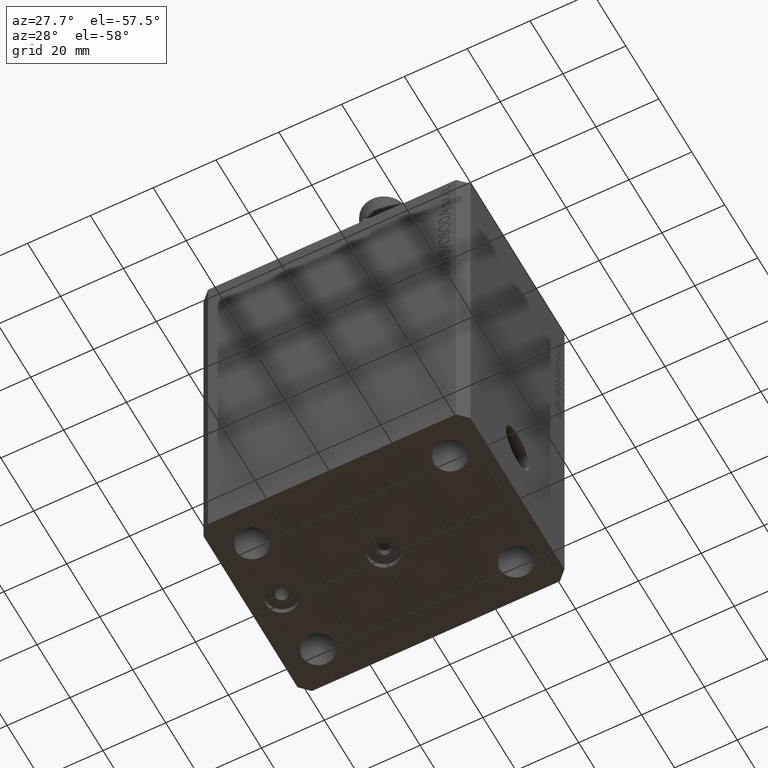
[diagram: clean part render]
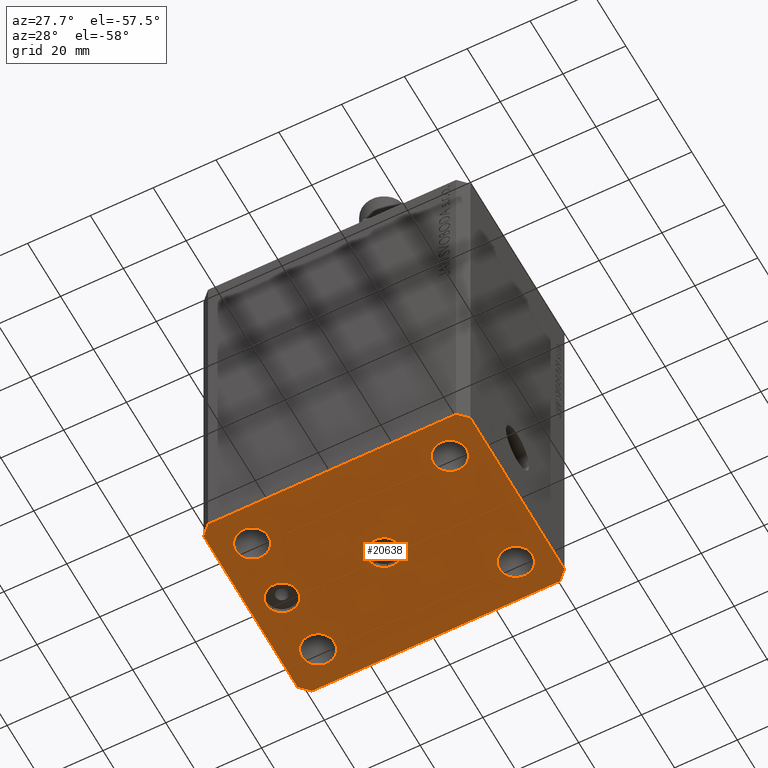
[diagram: same view with one face highlighted and labeled with its STEP entity id]
A machine part, auxiliary view. The second image highlights one B-rep face of the part: STEP entity #20638.
In plain terms, the highlighted planar face has unit normal (0, 0, 1).
Its self-contained STEP definition (entity closure, byte-faithful):
#334 = DIRECTION ( 'NONE',  ( -0.000000000000000000, -0.000000000000000000, -1.000000000000000000 ) ) ;
#699 = EDGE_CURVE ( 'NONE', #10042, #41396, #45478, .T. ) ;
#807 = DIRECTION ( 'NONE',  ( 1.000000000000000000, 0.000000000000000000, 0.000000000000000000 ) ) ;
#982 = DIRECTION ( 'NONE',  ( -0.000000000000000000, -0.000000000000000000, -1.000000000000000000 ) ) ;
#1117 = CARTESIAN_POINT ( 'NONE',  ( -39.50000000000000711, 31.50000000000000000, -123.0000000000000000 ) ) ;
#1285 = EDGE_CURVE ( 'NONE', #29782, #12764, #42392, .T. ) ;
#1925 = CIRCLE ( 'NONE', #25006, 5.000000000000000000 ) ;
#2215 = CIRCLE ( 'NONE', #32789, 5.249999999999997335 ) ;
#2692 = CARTESIAN_POINT ( 'NONE',  ( 39.50000000000056843, 31.50000000000000000, -123.0000000000000000 ) ) ;
#2749 = VECTOR ( 'NONE', #39148, 1000.000000000000000 ) ;
#3031 = DIRECTION ( 'NONE',  ( -0.000000000000000000, -0.000000000000000000, -1.000000000000000000 ) ) ;
#3111 = DIRECTION ( 'NONE',  ( 0.000000000000000000, 0.000000000000000000, 1.000000000000000000 ) ) ;
#3492 = CARTESIAN_POINT ( 'NONE',  ( -31.49999999999999289, -20.00000000000000355, -123.0000000000000000 ) ) ;
#3531 = EDGE_LOOP ( 'NONE', ( #10134, #8342 ) ) ;
#3800 = CARTESIAN_POINT ( 'NONE',  ( 31.50000000000000000, 19.99999999999999289, -123.0000000000000000 ) ) ;
#3901 = LINE ( 'NONE', #18140, #2749 ) ;
#3964 = EDGE_CURVE ( 'NONE', #5581, #39825, #2215, .T. ) ;
#4260 = EDGE_CURVE ( 'NONE', #43373, #16663, #4452, .T. ) ;
#4452 = CIRCLE ( 'NONE', #11158, 5.250000000000000888 ) ;
#4550 = ORIENTED_EDGE ( 'NONE', *, *, #28269, .F. ) ;
#5581 = VERTEX_POINT ( 'NONE', #42670 ) ;
#6200 = ORIENTED_EDGE ( 'NONE', *, *, #1285, .F. ) ;
#6250 = DIRECTION ( 'NONE',  ( -0.7071067811865471286, -0.7071067811865479058, 0.000000000000000000 ) ) ;
#6423 = AXIS2_PLACEMENT_3D ( 'NONE', #3492, #20986, #17725 ) ;
#6446 = CARTESIAN_POINT ( 'NONE',  ( 42.50000000000000711, -28.50000000000000355, -123.0000000000000000 ) ) ;
#6869 = LINE ( 'NONE', #20890, #30222 ) ;
#6925 = CARTESIAN_POINT ( 'NONE',  ( -42.50000000000000000, 28.50000000000000000, -123.0000000000000000 ) ) ;
#7063 = FACE_BOUND ( 'NONE', #9849, .T. ) ;
#7121 = ORIENTED_EDGE ( 'NONE', *, *, #36070, .F. ) ;
#7753 = FACE_BOUND ( 'NONE', #28300, .T. ) ;
#7852 = VERTEX_POINT ( 'NONE', #24816 ) ;
#7897 = VECTOR ( 'NONE', #34824, 1000.000000000000000 ) ;
#8261 = DIRECTION ( 'NONE',  ( -1.000000000000000000, 0.000000000000000000, 0.000000000000000000 ) ) ;
#8342 = ORIENTED_EDGE ( 'NONE', *, *, #4260, .F. ) ;
#8572 = AXIS2_PLACEMENT_3D ( 'NONE', #15287, #334, #807 ) ;
#8713 = AXIS2_PLACEMENT_3D ( 'NONE', #43016, #3111, #39043 ) ;
#9285 = CARTESIAN_POINT ( 'NONE',  ( -27.50000000000000355, 6.123233995736762338E-16, -123.0000000000000000 ) ) ;
#9434 = AXIS2_PLACEMENT_3D ( 'NONE', #32972, #982, #15234 ) ;
#9746 = LINE ( 'NONE', #38216, #13169 ) ;
#9849 = EDGE_LOOP ( 'NONE', ( #42130, #41415 ) ) ;
#9875 = CARTESIAN_POINT ( 'NONE',  ( 36.74999999999999289, -20.00000000000000355, -123.0000000000000000 ) ) ;
#10042 = VERTEX_POINT ( 'NONE', #1117 ) ;
#10083 = EDGE_CURVE ( 'NONE', #23493, #15028, #24187, .T. ) ;
#10134 = ORIENTED_EDGE ( 'NONE', *, *, #43926, .F. ) ;
#10571 = PLANE ( 'NONE',  #8713 ) ;
#10909 = AXIS2_PLACEMENT_3D ( 'NONE', #42451, #3031, #39197 ) ;
#11158 = AXIS2_PLACEMENT_3D ( 'NONE', #37392, #41109, #12872 ) ;
#11264 = DIRECTION ( 'NONE',  ( 1.000000000000000000, 0.000000000000000000, 0.000000000000000000 ) ) ;
#11274 = ORIENTED_EDGE ( 'NONE', *, *, #699, .F. ) ;
#11705 = CIRCLE ( 'NONE', #43769, 5.249999999999997335 ) ;
#12059 = DIRECTION ( 'NONE',  ( -1.000000000000000000, 0.000000000000000000, 0.000000000000000000 ) ) ;
#12420 = ORIENTED_EDGE ( 'NONE', *, *, #38715, .F. ) ;
#12458 = EDGE_CURVE ( 'NONE', #28687, #17854, #42730, .T. ) ;
#12674 = DIRECTION ( 'NONE',  ( 0.7071067811865483499, 0.7071067811865466846, 0.000000000000000000 ) ) ;
#12749 = ORIENTED_EDGE ( 'NONE', *, *, #10083, .F. ) ;
#12764 = VERTEX_POINT ( 'NONE', #25254 ) ;
#12872 = DIRECTION ( 'NONE',  ( 1.000000000000000000, 0.000000000000000000, 0.000000000000000000 ) ) ;
#13169 = VECTOR ( 'NONE', #16299, 1000.000000000000000 ) ;
#13409 = VERTEX_POINT ( 'NONE', #22326 ) ;
#14029 = CARTESIAN_POINT ( 'NONE',  ( -42.50000000000000000, 28.50000000000000000, -123.0000000000000000 ) ) ;
#14097 = ORIENTED_EDGE ( 'NONE', *, *, #39588, .F. ) ;
#14122 = DIRECTION ( 'NONE',  ( -0.7071067811865356934, 0.7071067811865594521, 0.000000000000000000 ) ) ;
#14714 = VECTOR ( 'NONE', #6250, 1000.000000000000000 ) ;
#15028 = VERTEX_POINT ( 'NONE', #36050 ) ;
#15234 = DIRECTION ( 'NONE',  ( 1.000000000000000000, 0.000000000000000000, 0.000000000000000000 ) ) ;
#15287 = CARTESIAN_POINT ( 'NONE',  ( 31.49999999999999289, -20.00000000000000355, -123.0000000000000000 ) ) ;
#15501 = VERTEX_POINT ( 'NONE', #43231 ) ;
#16020 = CARTESIAN_POINT ( 'NONE',  ( 39.50000000000056843, 31.50000000000000000, -123.0000000000000000 ) ) ;
#16254 = LINE ( 'NONE', #16020, #40580 ) ;
#16299 = DIRECTION ( 'NONE',  ( 1.000000000000000000, 0.000000000000000000, 0.000000000000000000 ) ) ;
#16663 = VERTEX_POINT ( 'NONE', #32461 ) ;
#16802 = CIRCLE ( 'NONE', #42875, 5.000000000000000000 ) ;
#16901 = EDGE_CURVE ( 'NONE', #15028, #29118, #6869, .T. ) ;
#17098 = AXIS2_PLACEMENT_3D ( 'NONE', #3800, #21768, #11264 ) ;
#17585 = FACE_BOUND ( 'NONE', #23484, .T. ) ;
#17725 = DIRECTION ( 'NONE',  ( 1.000000000000000000, 0.000000000000000000, 0.000000000000000000 ) ) ;
#17854 = VERTEX_POINT ( 'NONE', #34869 ) ;
#18134 = DIRECTION ( 'NONE',  ( -1.000000000000000000, 0.000000000000000000, 0.000000000000000000 ) ) ;
#18140 = CARTESIAN_POINT ( 'NONE',  ( -42.50000000000000000, -28.50000000000000000, -123.0000000000000000 ) ) ;
#18732 = EDGE_CURVE ( 'NONE', #41396, #19311, #24749, .T. ) ;
#18797 = CARTESIAN_POINT ( 'NONE',  ( 31.49999999999999289, -20.00000000000000355, -123.0000000000000000 ) ) ;
#18871 = ORIENTED_EDGE ( 'NONE', *, *, #26526, .F. ) ;
#19301 = EDGE_LOOP ( 'NONE', ( #27896, #38241 ) ) ;
#19311 = VERTEX_POINT ( 'NONE', #28652 ) ;
#19450 = CARTESIAN_POINT ( 'NONE',  ( 39.50000000000000711, -31.50000000000000000, -123.0000000000000000 ) ) ;
#19610 = EDGE_CURVE ( 'NONE', #7852, #23168, #31041, .T. ) ;
#20367 = EDGE_LOOP ( 'NONE', ( #38801, #23143, #12749, #12420, #34138, #7121, #35695, #11274 ) ) ;
#20500 = CARTESIAN_POINT ( 'NONE',  ( -39.50000000000000711, 31.50000000000000000, -123.0000000000000000 ) ) ;
#20638 = ADVANCED_FACE ( 'NONE', ( #32061, #39737, #35319, #17585, #7753, #7063, #35099 ), #10571, .F. ) ;
#20699 = DIRECTION ( 'NONE',  ( 8.886653596232072440E-15, 1.000000000000000000, 0.000000000000000000 ) ) ;
#20705 = AXIS2_PLACEMENT_3D ( 'NONE', #40685, #23399, #44428 ) ;
#20711 = CARTESIAN_POINT ( 'NONE',  ( -36.74999999999999289, -20.00000000000000355, -123.0000000000000000 ) ) ;
#20890 = CARTESIAN_POINT ( 'NONE',  ( 42.50000000000051870, 28.49999999999995381, -123.0000000000000000 ) ) ;
#20986 = DIRECTION ( 'NONE',  ( -0.000000000000000000, -0.000000000000000000, -1.000000000000000000 ) ) ;
#21618 = EDGE_CURVE ( 'NONE', #15501, #13409, #1925, .T. ) ;
#21768 = DIRECTION ( 'NONE',  ( -0.000000000000000000, -0.000000000000000000, -1.000000000000000000 ) ) ;
#22326 = CARTESIAN_POINT ( 'NONE',  ( 5.000000000000000000, 6.123233995736765296E-16, -123.0000000000000000 ) ) ;
#23143 = ORIENTED_EDGE ( 'NONE', *, *, #16901, .F. ) ;
#23168 = VERTEX_POINT ( 'NONE', #43321 ) ;
#23399 = DIRECTION ( 'NONE',  ( 0.000000000000000000, 0.000000000000000000, -1.000000000000000000 ) ) ;
#23484 = EDGE_LOOP ( 'NONE', ( #14097, #46159 ) ) ;
#23493 = VERTEX_POINT ( 'NONE', #43432 ) ;
#23621 = DIRECTION ( 'NONE',  ( 1.000000000000000000, 0.000000000000000000, 0.000000000000000000 ) ) ;
#24187 = LINE ( 'NONE', #6446, #33654 ) ;
#24749 = LINE ( 'NONE', #14029, #7897 ) ;
#24816 = CARTESIAN_POINT ( 'NONE',  ( -26.25000000000000000, 19.99999999999999645, -123.0000000000000000 ) ) ;
#25006 = AXIS2_PLACEMENT_3D ( 'NONE', #42695, #35712, #36170 ) ;
#25058 = CIRCLE ( 'NONE', #10909, 5.250000000000000888 ) ;
#25254 = CARTESIAN_POINT ( 'NONE',  ( 26.25000000000000355, 19.99999999999999289, -123.0000000000000000 ) ) ;
#25288 = CARTESIAN_POINT ( 'NONE',  ( 39.50000000000000711, -31.50000000000000000, -123.0000000000000000 ) ) ;
#25776 = DIRECTION ( 'NONE',  ( 0.000000000000000000, 0.000000000000000000, -1.000000000000000000 ) ) ;
#26526 = EDGE_CURVE ( 'NONE', #12764, #29782, #11705, .T. ) ;
#26564 = CARTESIAN_POINT ( 'NONE',  ( 36.75000000000000000, 19.99999999999999289, -123.0000000000000000 ) ) ;
#27896 = ORIENTED_EDGE ( 'NONE', *, *, #21618, .F. ) ;
#28269 = EDGE_CURVE ( 'NONE', #17854, #28687, #44563, .T. ) ;
#28300 = EDGE_LOOP ( 'NONE', ( #6200, #18871 ) ) ;
#28652 = CARTESIAN_POINT ( 'NONE',  ( -42.50000000000000000, -28.50000000000000000, -123.0000000000000000 ) ) ;
#28687 = VERTEX_POINT ( 'NONE', #9285 ) ;
#28934 = CARTESIAN_POINT ( 'NONE',  ( -39.50000000000000711, -31.50000000000000000, -123.0000000000000000 ) ) ;
#29118 = VERTEX_POINT ( 'NONE', #2692 ) ;
#29782 = VERTEX_POINT ( 'NONE', #26564 ) ;
#30222 = VECTOR ( 'NONE', #14122, 1000.000000000000114 ) ;
#30293 = CIRCLE ( 'NONE', #6423, 5.250000000000000888 ) ;
#30384 = EDGE_LOOP ( 'NONE', ( #4550, #43972 ) ) ;
#31041 = CIRCLE ( 'NONE', #9434, 5.250000000000000888 ) ;
#32061 = FACE_BOUND ( 'NONE', #19301, .T. ) ;
#32340 = VERTEX_POINT ( 'NONE', #25288 ) ;
#32461 = CARTESIAN_POINT ( 'NONE',  ( -26.24999999999999289, -20.00000000000000355, -123.0000000000000000 ) ) ;
#32566 = CARTESIAN_POINT ( 'NONE',  ( -32.50000000000000000, 0.000000000000000000, -123.0000000000000000 ) ) ;
#32789 = AXIS2_PLACEMENT_3D ( 'NONE', #18797, #33040, #36757 ) ;
#32972 = CARTESIAN_POINT ( 'NONE',  ( -31.50000000000000000, 19.99999999999999645, -123.0000000000000000 ) ) ;
#33040 = DIRECTION ( 'NONE',  ( -0.000000000000000000, -0.000000000000000000, -1.000000000000000000 ) ) ;
#33654 = VECTOR ( 'NONE', #20699, 1000.000000000000000 ) ;
#34127 = DIRECTION ( 'NONE',  ( -0.000000000000000000, -0.000000000000000000, -1.000000000000000000 ) ) ;
#34138 = ORIENTED_EDGE ( 'NONE', *, *, #44101, .F. ) ;
#34824 = DIRECTION ( 'NONE',  ( 0.000000000000000000, -1.000000000000000000, 0.000000000000000000 ) ) ;
#34869 = CARTESIAN_POINT ( 'NONE',  ( -37.50000000000000000, 0.000000000000000000, -123.0000000000000000 ) ) ;
#35060 = EDGE_CURVE ( 'NONE', #23168, #7852, #25058, .T. ) ;
#35099 = FACE_OUTER_BOUND ( 'NONE', #20367, .T. ) ;
#35190 = DIRECTION ( 'NONE',  ( 0.000000000000000000, 0.000000000000000000, -1.000000000000000000 ) ) ;
#35319 = FACE_BOUND ( 'NONE', #3531, .T. ) ;
#35695 = ORIENTED_EDGE ( 'NONE', *, *, #18732, .F. ) ;
#35712 = DIRECTION ( 'NONE',  ( 0.000000000000000000, 0.000000000000000000, -1.000000000000000000 ) ) ;
#35879 = CARTESIAN_POINT ( 'NONE',  ( 0.000000000000000000, 0.000000000000000000, -123.0000000000000000 ) ) ;
#36050 = CARTESIAN_POINT ( 'NONE',  ( 42.50000000000051870, 28.49999999999995381, -123.0000000000000000 ) ) ;
#36070 = EDGE_CURVE ( 'NONE', #19311, #38191, #3901, .T. ) ;
#36170 = DIRECTION ( 'NONE',  ( -1.000000000000000000, 0.000000000000000000, 0.000000000000000000 ) ) ;
#36757 = DIRECTION ( 'NONE',  ( 1.000000000000000000, 0.000000000000000000, 0.000000000000000000 ) ) ;
#37392 = CARTESIAN_POINT ( 'NONE',  ( -31.49999999999999289, -20.00000000000000355, -123.0000000000000000 ) ) ;
#38081 = CARTESIAN_POINT ( 'NONE',  ( 31.50000000000000000, 19.99999999999999289, -123.0000000000000000 ) ) ;
#38191 = VERTEX_POINT ( 'NONE', #28934 ) ;
#38216 = CARTESIAN_POINT ( 'NONE',  ( -39.50000000000000711, -31.50000000000000000, -123.0000000000000000 ) ) ;
#38241 = ORIENTED_EDGE ( 'NONE', *, *, #41367, .F. ) ;
#38715 = EDGE_CURVE ( 'NONE', #32340, #23493, #40691, .T. ) ;
#38801 = ORIENTED_EDGE ( 'NONE', *, *, #39267, .F. ) ;
#39043 = DIRECTION ( 'NONE',  ( 1.000000000000000000, 0.000000000000000000, -0.000000000000000000 ) ) ;
#39148 = DIRECTION ( 'NONE',  ( 0.7071067811865471286, -0.7071067811865479058, 0.000000000000000000 ) ) ;
#39197 = DIRECTION ( 'NONE',  ( 1.000000000000000000, 0.000000000000000000, 0.000000000000000000 ) ) ;
#39267 = EDGE_CURVE ( 'NONE', #29118, #10042, #16254, .T. ) ;
#39588 = EDGE_CURVE ( 'NONE', #39825, #5581, #42094, .T. ) ;
#39737 = FACE_BOUND ( 'NONE', #30384, .T. ) ;
#39825 = VERTEX_POINT ( 'NONE', #9875 ) ;
#40580 = VECTOR ( 'NONE', #12059, 1000.000000000000000 ) ;
#40685 = CARTESIAN_POINT ( 'NONE',  ( -32.50000000000000000, 0.000000000000000000, -123.0000000000000000 ) ) ;
#40691 = LINE ( 'NONE', #19450, #42798 ) ;
#41109 = DIRECTION ( 'NONE',  ( -0.000000000000000000, -0.000000000000000000, -1.000000000000000000 ) ) ;
#41235 = AXIS2_PLACEMENT_3D ( 'NONE', #32566, #25776, #8261 ) ;
#41367 = EDGE_CURVE ( 'NONE', #13409, #15501, #16802, .T. ) ;
#41396 = VERTEX_POINT ( 'NONE', #6925 ) ;
#41415 = ORIENTED_EDGE ( 'NONE', *, *, #35060, .F. ) ;
#42094 = CIRCLE ( 'NONE', #8572, 5.249999999999997335 ) ;
#42130 = ORIENTED_EDGE ( 'NONE', *, *, #19610, .F. ) ;
#42392 = CIRCLE ( 'NONE', #17098, 5.249999999999997335 ) ;
#42451 = CARTESIAN_POINT ( 'NONE',  ( -31.50000000000000000, 19.99999999999999645, -123.0000000000000000 ) ) ;
#42670 = CARTESIAN_POINT ( 'NONE',  ( 26.24999999999999645, -20.00000000000000355, -123.0000000000000000 ) ) ;
#42695 = CARTESIAN_POINT ( 'NONE',  ( 0.000000000000000000, 0.000000000000000000, -123.0000000000000000 ) ) ;
#42730 = CIRCLE ( 'NONE', #41235, 4.999999999999997335 ) ;
#42798 = VECTOR ( 'NONE', #12674, 1000.000000000000000 ) ;
#42875 = AXIS2_PLACEMENT_3D ( 'NONE', #35879, #35190, #18134 ) ;
#43016 = CARTESIAN_POINT ( 'NONE',  ( 0.000000000000000000, 0.000000000000000000, -123.0000000000000000 ) ) ;
#43231 = CARTESIAN_POINT ( 'NONE',  ( -5.000000000000000000, 0.000000000000000000, -123.0000000000000000 ) ) ;
#43321 = CARTESIAN_POINT ( 'NONE',  ( -36.75000000000000000, 19.99999999999999645, -123.0000000000000000 ) ) ;
#43373 = VERTEX_POINT ( 'NONE', #20711 ) ;
#43432 = CARTESIAN_POINT ( 'NONE',  ( 42.50000000000000711, -28.50000000000000355, -123.0000000000000000 ) ) ;
#43769 = AXIS2_PLACEMENT_3D ( 'NONE', #38081, #34127, #23621 ) ;
#43926 = EDGE_CURVE ( 'NONE', #16663, #43373, #30293, .T. ) ;
#43972 = ORIENTED_EDGE ( 'NONE', *, *, #12458, .F. ) ;
#44101 = EDGE_CURVE ( 'NONE', #38191, #32340, #9746, .T. ) ;
#44428 = DIRECTION ( 'NONE',  ( -1.000000000000000000, 0.000000000000000000, 0.000000000000000000 ) ) ;
#44563 = CIRCLE ( 'NONE', #20705, 4.999999999999997335 ) ;
#45478 = LINE ( 'NONE', #20500, #14714 ) ;
#46159 = ORIENTED_EDGE ( 'NONE', *, *, #3964, .F. ) ;